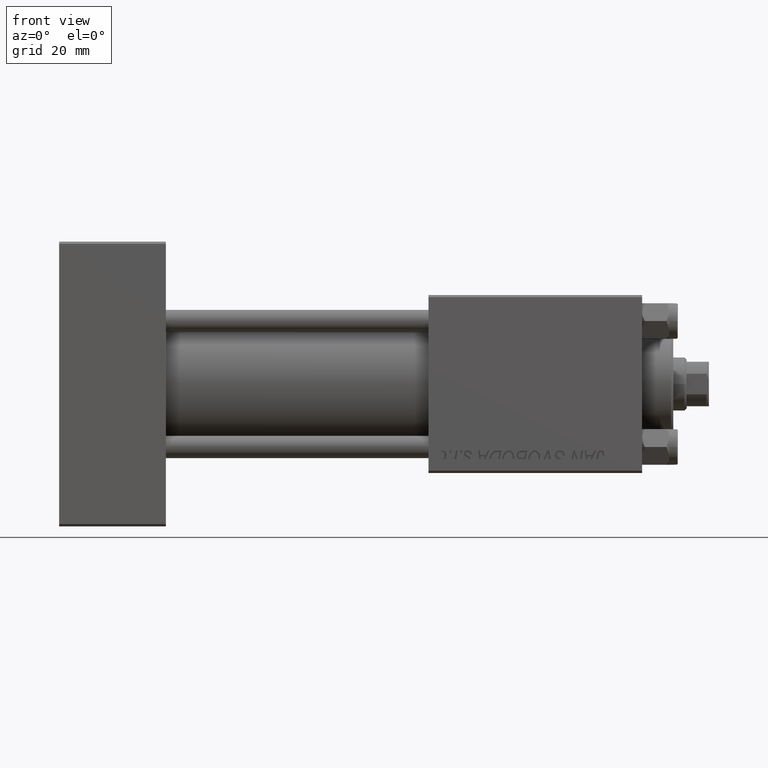
[diagram: clean part render]
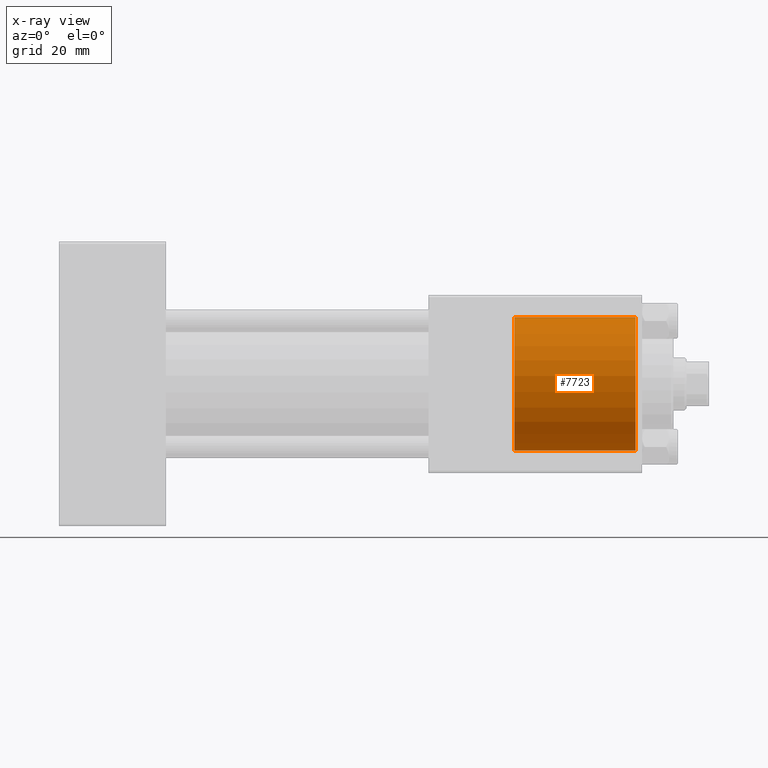
[diagram: x-ray — body ghosted, one internal face saturated and labeled with its STEP entity id]
A machine part, front view, then the same camera in x-ray: the body is ghosted and one INTERNAL B-rep face — a face not visible from any outside direction — is saturated and labeled: STEP entity #7723.
In plain terms, the highlighted cylindrical surface (partial cylindrical patch) has radius 15 mm, axis along (1, 0, 0).
Its self-contained STEP definition (entity closure, byte-faithful):
#1887 = CARTESIAN_POINT ( 'NONE',  ( 102.2999999999999972, 1.836970198721029589E-15, 15.00000000000000000 ) ) ;
#4395 = DIRECTION ( 'NONE',  ( 0.000000000000000000, 0.000000000000000000, -1.000000000000000000 ) ) ;
#4660 = AXIS2_PLACEMENT_3D ( 'NONE', #38980, #19801, #4395 ) ;
#5997 = EDGE_LOOP ( 'NONE', ( #41198, #25294, #48742, #40237 ) ) ;
#7723 = ADVANCED_FACE ( 'NONE', ( #22393 ), #18615, .F. ) ;
#8237 = VECTOR ( 'NONE', #42386, 1000.000000000000000 ) ;
#11705 = EDGE_CURVE ( 'NONE', #39231, #29377, #30787, .T. ) ;
#12959 = AXIS2_PLACEMENT_3D ( 'NONE', #33521, #34026, #49410 ) ;
#13295 = DIRECTION ( 'NONE',  ( 1.000000000000000000, -0.000000000000000000, -0.000000000000000000 ) ) ;
#13550 = CIRCLE ( 'NONE', #4660, 15.00000000000000000 ) ;
#15147 = CARTESIAN_POINT ( 'NONE',  ( 129.5000000000000000, 0.000000000000000000, 0.000000000000000000 ) ) ;
#15383 = DIRECTION ( 'NONE',  ( 0.000000000000000000, 0.000000000000000000, 1.000000000000000000 ) ) ;
#17332 = LINE ( 'NONE', #33494, #38799 ) ;
#18615 = CYLINDRICAL_SURFACE ( 'NONE', #12959, 15.00000000000000000 ) ;
#19585 = EDGE_CURVE ( 'NONE', #20006, #29377, #23688, .T. ) ;
#19801 = DIRECTION ( 'NONE',  ( 1.000000000000000000, 0.000000000000000000, 0.000000000000000000 ) ) ;
#20006 = VERTEX_POINT ( 'NONE', #35766 ) ;
#22393 = FACE_OUTER_BOUND ( 'NONE', #5997, .T. ) ;
#23688 = CIRCLE ( 'NONE', #40639, 15.00000000000000000 ) ;
#25294 = ORIENTED_EDGE ( 'NONE', *, *, #36492, .T. ) ;
#25666 = VERTEX_POINT ( 'NONE', #1887 ) ;
#26156 = CARTESIAN_POINT ( 'NONE',  ( 129.5000000000000000, 0.000000000000000000, -15.00000000000000000 ) ) ;
#29377 = VERTEX_POINT ( 'NONE', #26156 ) ;
#30787 = LINE ( 'NONE', #46169, #8237 ) ;
#32517 = EDGE_CURVE ( 'NONE', #25666, #39231, #13550, .T. ) ;
#33494 = CARTESIAN_POINT ( 'NONE',  ( 102.2999999999999972, 1.836970198721029589E-15, 15.00000000000000000 ) ) ;
#33521 = CARTESIAN_POINT ( 'NONE',  ( 102.2999999999999972, 0.000000000000000000, 0.000000000000000000 ) ) ;
#34026 = DIRECTION ( 'NONE',  ( 1.000000000000000000, -0.000000000000000000, -0.000000000000000000 ) ) ;
#34592 = DIRECTION ( 'NONE',  ( 1.000000000000000000, 0.000000000000000000, 0.000000000000000000 ) ) ;
#35766 = CARTESIAN_POINT ( 'NONE',  ( 129.5000000000000000, 1.836970198721029589E-15, 15.00000000000000000 ) ) ;
#36492 = EDGE_CURVE ( 'NONE', #25666, #20006, #17332, .T. ) ;
#38799 = VECTOR ( 'NONE', #13295, 1000.000000000000000 ) ;
#38980 = CARTESIAN_POINT ( 'NONE',  ( 102.2999999999999972, 0.000000000000000000, 0.000000000000000000 ) ) ;
#39231 = VERTEX_POINT ( 'NONE', #45710 ) ;
#40237 = ORIENTED_EDGE ( 'NONE', *, *, #11705, .F. ) ;
#40639 = AXIS2_PLACEMENT_3D ( 'NONE', #15147, #34592, #15383 ) ;
#41198 = ORIENTED_EDGE ( 'NONE', *, *, #32517, .F. ) ;
#42386 = DIRECTION ( 'NONE',  ( 1.000000000000000000, -0.000000000000000000, -0.000000000000000000 ) ) ;
#45710 = CARTESIAN_POINT ( 'NONE',  ( 102.2999999999999972, 0.000000000000000000, -15.00000000000000000 ) ) ;
#46169 = CARTESIAN_POINT ( 'NONE',  ( 102.2999999999999972, 0.000000000000000000, -15.00000000000000000 ) ) ;
#48742 = ORIENTED_EDGE ( 'NONE', *, *, #19585, .T. ) ;
#49410 = DIRECTION ( 'NONE',  ( 0.000000000000000000, 0.000000000000000000, -1.000000000000000000 ) ) ;